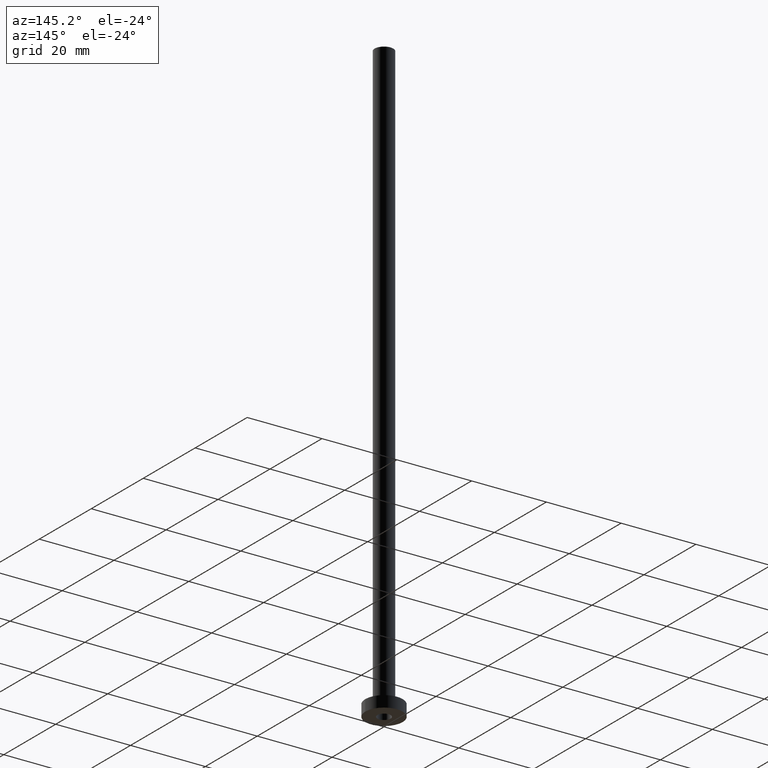
[diagram: clean part render]
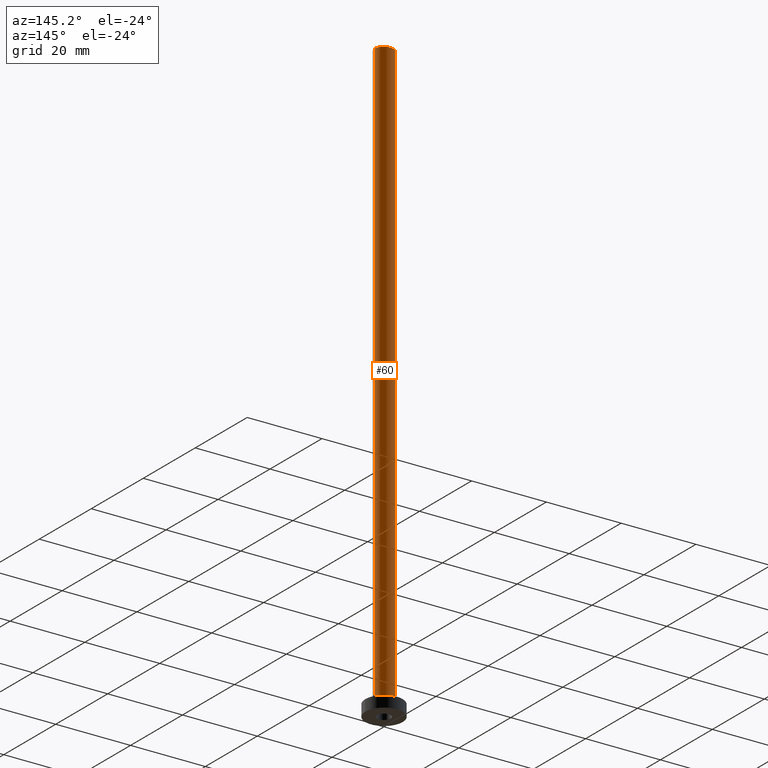
[diagram: same view with one face highlighted and labeled with its STEP entity id]
A machine part, auxiliary view. The second image highlights one B-rep face of the part: STEP entity #60.
In plain terms, the highlighted cylindrical surface (edge-blend (fillet) strip) has radius 2.5 mm, axis along (-0, -0, -1).
Its self-contained STEP definition (entity closure, byte-faithful):
#19 = CARTESIAN_POINT ( 'NONE',  ( -2.500000000000000000, 0.000000000000000000, 160.0000000000000000 ) ) ;
#24 = VERTEX_POINT ( 'NONE', #123 ) ;
#25 = CIRCLE ( 'NONE', #133, 2.500000000000000000 ) ;
#47 = CARTESIAN_POINT ( 'NONE',  ( 0.000000000000000000, 0.000000000000000000, 160.0000000000000000 ) ) ;
#54 = VECTOR ( 'NONE', #147, 1000.000000000000000 ) ;
#60 = ADVANCED_FACE ( 'NONE', ( #88 ), #408, .T. ) ;
#63 = DIRECTION ( 'NONE',  ( 1.000000000000000000, 0.000000000000000000, 0.000000000000000000 ) ) ;
#77 = CARTESIAN_POINT ( 'NONE',  ( 2.500000000000000000, 3.061616997868383141E-16, 160.0000000000000000 ) ) ;
#81 = CARTESIAN_POINT ( 'NONE',  ( 2.500000000000000000, 3.061616997868383141E-16, 160.0000000000000000 ) ) ;
#83 = LINE ( 'NONE', #81, #314 ) ;
#88 = FACE_OUTER_BOUND ( 'NONE', #307, .T. ) ;
#106 = DIRECTION ( 'NONE',  ( 0.000000000000000000, 0.000000000000000000, 1.000000000000000000 ) ) ;
#110 = LINE ( 'NONE', #386, #54 ) ;
#123 = CARTESIAN_POINT ( 'NONE',  ( 2.500000000000000000, 3.061616997868383141E-16, 3.299999999999997158 ) ) ;
#126 = DIRECTION ( 'NONE',  ( -1.000000000000000000, 0.000000000000000000, 0.000000000000000000 ) ) ;
#133 = AXIS2_PLACEMENT_3D ( 'NONE', #345, #106, #63 ) ;
#139 = VERTEX_POINT ( 'NONE', #19 ) ;
#146 = DIRECTION ( 'NONE',  ( -0.000000000000000000, -0.000000000000000000, -1.000000000000000000 ) ) ;
#147 = DIRECTION ( 'NONE',  ( -0.000000000000000000, -0.000000000000000000, -1.000000000000000000 ) ) ;
#177 = CIRCLE ( 'NONE', #330, 2.500000000000000000 ) ;
#180 = ORIENTED_EDGE ( 'NONE', *, *, #232, .T. ) ;
#201 = ORIENTED_EDGE ( 'NONE', *, *, #415, .F. ) ;
#204 = CARTESIAN_POINT ( 'NONE',  ( 0.000000000000000000, 0.000000000000000000, 3.299999999999997158 ) ) ;
#230 = VERTEX_POINT ( 'NONE', #77 ) ;
#232 = EDGE_CURVE ( 'NONE', #24, #385, #177, .T. ) ;
#268 = ORIENTED_EDGE ( 'NONE', *, *, #460, .F. ) ;
#270 = EDGE_CURVE ( 'NONE', #230, #24, #83, .T. ) ;
#306 = ORIENTED_EDGE ( 'NONE', *, *, #270, .T. ) ;
#307 = EDGE_LOOP ( 'NONE', ( #268, #306, #180, #201 ) ) ;
#314 = VECTOR ( 'NONE', #146, 1000.000000000000000 ) ;
#318 = DIRECTION ( 'NONE',  ( 1.000000000000000000, 0.000000000000000000, 0.000000000000000000 ) ) ;
#330 = AXIS2_PLACEMENT_3D ( 'NONE', #204, #358, #318 ) ;
#333 = DIRECTION ( 'NONE',  ( -0.000000000000000000, -0.000000000000000000, -1.000000000000000000 ) ) ;
#345 = CARTESIAN_POINT ( 'NONE',  ( 0.000000000000000000, 0.000000000000000000, 160.0000000000000000 ) ) ;
#358 = DIRECTION ( 'NONE',  ( 0.000000000000000000, 0.000000000000000000, 1.000000000000000000 ) ) ;
#381 = AXIS2_PLACEMENT_3D ( 'NONE', #47, #333, #126 ) ;
#385 = VERTEX_POINT ( 'NONE', #425 ) ;
#386 = CARTESIAN_POINT ( 'NONE',  ( -2.500000000000000000, 0.000000000000000000, 160.0000000000000000 ) ) ;
#408 = CYLINDRICAL_SURFACE ( 'NONE', #381, 2.500000000000000000 ) ;
#415 = EDGE_CURVE ( 'NONE', #139, #385, #110, .T. ) ;
#425 = CARTESIAN_POINT ( 'NONE',  ( -2.500000000000000000, 0.000000000000000000, 3.299999999999997158 ) ) ;
#460 = EDGE_CURVE ( 'NONE', #230, #139, #25, .T. ) ;